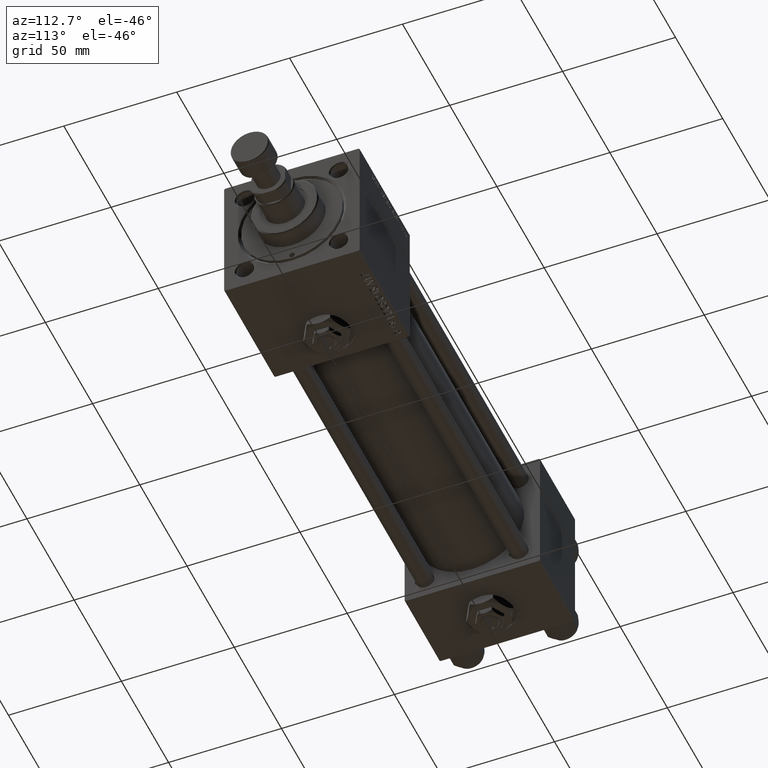
[diagram: clean part render]
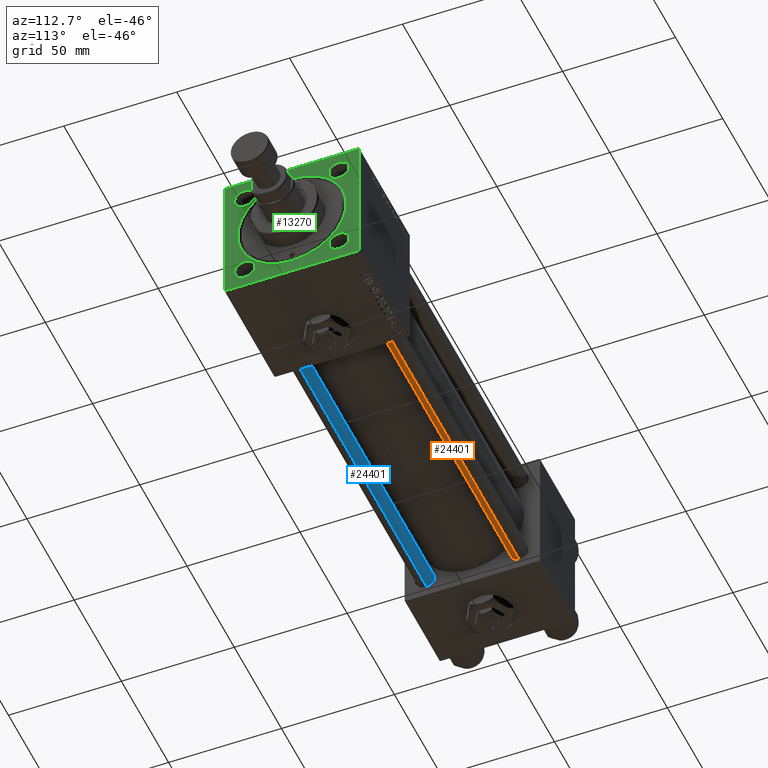
[diagram: same view with three faces highlighted in distinct colors, each labeled with its STEP entity id]
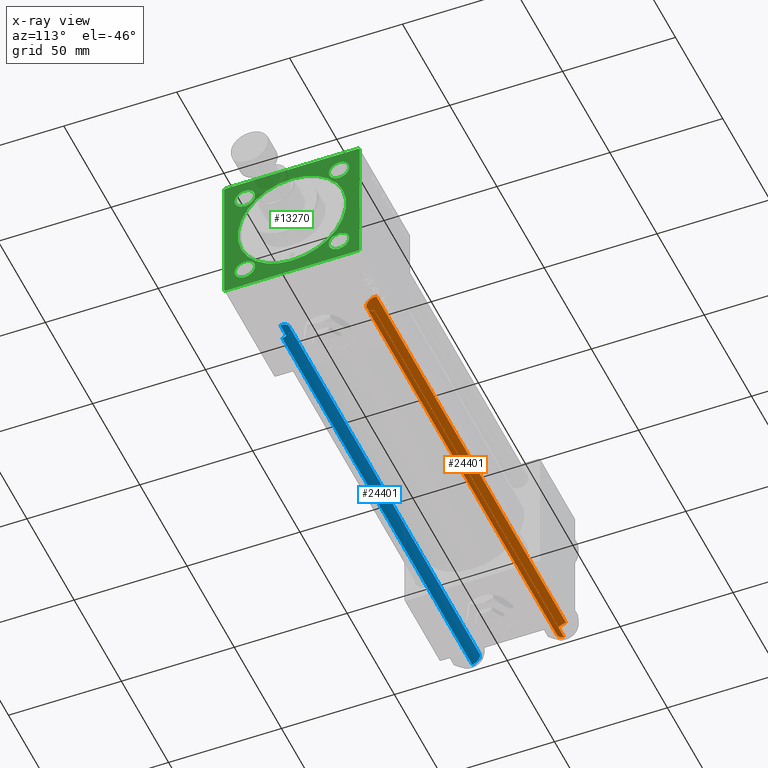
[diagram: x-ray of the same camera — body ghosted, the three highlighted faces saturated]
A machine part, auxiliary view with three faces highlighted in distinct colors.
The next image is the same camera in x-ray (body ghosted, the three faces saturated) — at least one of them is partly hidden behind the body in this view.
Their STEP definitions:

[orange] entity #24401 — the highlighted cylindrical surface (edge-blend (fillet) strip) has radius 4 mm, axis along (1, -0, 0).
#3389 = DIRECTION ( 'NONE',  ( -0.000000000000000000, -0.000000000000000000, -1.000000000000000000 ) ) ;
#4486 = CIRCLE ( 'NONE', #16394, 4.000000000000000000 ) ;
#8575 = FACE_OUTER_BOUND ( 'NONE', #51169, .T. ) ;
#8893 = VECTOR ( 'NONE', #3389, 1000.000000000000000 ) ;
#13548 = CARTESIAN_POINT ( 'NONE',  ( -4.000000000000000000, 0.000000000000000000, 0.5000000000000004441 ) ) ;
#15386 = CARTESIAN_POINT ( 'NONE',  ( 4.000000000000000000, 4.898587196589412829E-16, 202.0000000000000000 ) ) ;
#15426 = VERTEX_POINT ( 'NONE', #13548 ) ;
#15537 = DIRECTION ( 'NONE',  ( 0.000000000000000000, 0.000000000000000000, -1.000000000000000000 ) ) ;
#16394 = AXIS2_PLACEMENT_3D ( 'NONE', #35703, #51992, #43202 ) ;
#19244 = EDGE_CURVE ( 'NONE', #49993, #32556, #24185, .T. ) ;
#20847 = LINE ( 'NONE', #49407, #46899 ) ;
#21128 = DIRECTION ( 'NONE',  ( -0.000000000000000000, -0.000000000000000000, -1.000000000000000000 ) ) ;
#22009 = EDGE_CURVE ( 'NONE', #49993, #36202, #51986, .T. ) ;
#24185 = CIRCLE ( 'NONE', #29295, 4.000000000000000000 ) ;
#24401 = ADVANCED_FACE ( 'NONE', ( #8575 ), #24863, .T. ) ;
#24863 = CYLINDRICAL_SURFACE ( 'NONE', #36302, 4.000000000000000000 ) ;
#24910 = CARTESIAN_POINT ( 'NONE',  ( 4.000000000000000000, 4.898587196589412829E-16, 0.5000000000000004441 ) ) ;
#25145 = ORIENTED_EDGE ( 'NONE', *, *, #19244, .T. ) ;
#25630 = DIRECTION ( 'NONE',  ( -0.000000000000000000, -0.000000000000000000, -1.000000000000000000 ) ) ;
#29274 = ORIENTED_EDGE ( 'NONE', *, *, #22009, .F. ) ;
#29295 = AXIS2_PLACEMENT_3D ( 'NONE', #52133, #15537, #31840 ) ;
#31840 = DIRECTION ( 'NONE',  ( 1.000000000000000000, 0.000000000000000000, 0.000000000000000000 ) ) ;
#32556 = VERTEX_POINT ( 'NONE', #43694 ) ;
#33139 = CARTESIAN_POINT ( 'NONE',  ( 0.000000000000000000, 0.000000000000000000, 202.0000000000000000 ) ) ;
#35703 = CARTESIAN_POINT ( 'NONE',  ( 0.000000000000000000, 0.000000000000000000, 0.5000000000000004441 ) ) ;
#36202 = VERTEX_POINT ( 'NONE', #24910 ) ;
#36302 = AXIS2_PLACEMENT_3D ( 'NONE', #33139, #21128, #41164 ) ;
#40150 = CARTESIAN_POINT ( 'NONE',  ( 4.000000000000000000, 4.898587196589412829E-16, 201.5000000000000000 ) ) ;
#41164 = DIRECTION ( 'NONE',  ( -1.000000000000000000, 0.000000000000000000, 0.000000000000000000 ) ) ;
#43202 = DIRECTION ( 'NONE',  ( 1.000000000000000000, 0.000000000000000000, 0.000000000000000000 ) ) ;
#43694 = CARTESIAN_POINT ( 'NONE',  ( -4.000000000000000000, 0.000000000000000000, 201.5000000000000000 ) ) ;
#44780 = ORIENTED_EDGE ( 'NONE', *, *, #46623, .T. ) ;
#45896 = ORIENTED_EDGE ( 'NONE', *, *, #51424, .T. ) ;
#46623 = EDGE_CURVE ( 'NONE', #32556, #15426, #20847, .T. ) ;
#46899 = VECTOR ( 'NONE', #25630, 1000.000000000000000 ) ;
#49407 = CARTESIAN_POINT ( 'NONE',  ( -4.000000000000000000, 0.000000000000000000, 202.0000000000000000 ) ) ;
#49993 = VERTEX_POINT ( 'NONE', #40150 ) ;
#51169 = EDGE_LOOP ( 'NONE', ( #29274, #25145, #44780, #45896 ) ) ;
#51424 = EDGE_CURVE ( 'NONE', #15426, #36202, #4486, .T. ) ;
#51986 = LINE ( 'NONE', #15386, #8893 ) ;
#51992 = DIRECTION ( 'NONE',  ( -0.000000000000000000, -0.000000000000000000, 1.000000000000000000 ) ) ;
#52133 = CARTESIAN_POINT ( 'NONE',  ( 0.000000000000000000, 0.000000000000000000, 201.5000000000000000 ) ) ;

[blue] entity #24401 — the highlighted cylindrical surface (edge-blend (fillet) strip) has radius 4 mm, axis along (-1, -0, -0).
#3389 = DIRECTION ( 'NONE',  ( -0.000000000000000000, -0.000000000000000000, -1.000000000000000000 ) ) ;
#4486 = CIRCLE ( 'NONE', #16394, 4.000000000000000000 ) ;
#8575 = FACE_OUTER_BOUND ( 'NONE', #51169, .T. ) ;
#8893 = VECTOR ( 'NONE', #3389, 1000.000000000000000 ) ;
#13548 = CARTESIAN_POINT ( 'NONE',  ( -4.000000000000000000, 0.000000000000000000, 0.5000000000000004441 ) ) ;
#15386 = CARTESIAN_POINT ( 'NONE',  ( 4.000000000000000000, 4.898587196589412829E-16, 202.0000000000000000 ) ) ;
#15426 = VERTEX_POINT ( 'NONE', #13548 ) ;
#15537 = DIRECTION ( 'NONE',  ( 0.000000000000000000, 0.000000000000000000, -1.000000000000000000 ) ) ;
#16394 = AXIS2_PLACEMENT_3D ( 'NONE', #35703, #51992, #43202 ) ;
#19244 = EDGE_CURVE ( 'NONE', #49993, #32556, #24185, .T. ) ;
#20847 = LINE ( 'NONE', #49407, #46899 ) ;
#21128 = DIRECTION ( 'NONE',  ( -0.000000000000000000, -0.000000000000000000, -1.000000000000000000 ) ) ;
#22009 = EDGE_CURVE ( 'NONE', #49993, #36202, #51986, .T. ) ;
#24185 = CIRCLE ( 'NONE', #29295, 4.000000000000000000 ) ;
#24401 = ADVANCED_FACE ( 'NONE', ( #8575 ), #24863, .T. ) ;
#24863 = CYLINDRICAL_SURFACE ( 'NONE', #36302, 4.000000000000000000 ) ;
#24910 = CARTESIAN_POINT ( 'NONE',  ( 4.000000000000000000, 4.898587196589412829E-16, 0.5000000000000004441 ) ) ;
#25145 = ORIENTED_EDGE ( 'NONE', *, *, #19244, .T. ) ;
#25630 = DIRECTION ( 'NONE',  ( -0.000000000000000000, -0.000000000000000000, -1.000000000000000000 ) ) ;
#29274 = ORIENTED_EDGE ( 'NONE', *, *, #22009, .F. ) ;
#29295 = AXIS2_PLACEMENT_3D ( 'NONE', #52133, #15537, #31840 ) ;
#31840 = DIRECTION ( 'NONE',  ( 1.000000000000000000, 0.000000000000000000, 0.000000000000000000 ) ) ;
#32556 = VERTEX_POINT ( 'NONE', #43694 ) ;
#33139 = CARTESIAN_POINT ( 'NONE',  ( 0.000000000000000000, 0.000000000000000000, 202.0000000000000000 ) ) ;
#35703 = CARTESIAN_POINT ( 'NONE',  ( 0.000000000000000000, 0.000000000000000000, 0.5000000000000004441 ) ) ;
#36202 = VERTEX_POINT ( 'NONE', #24910 ) ;
#36302 = AXIS2_PLACEMENT_3D ( 'NONE', #33139, #21128, #41164 ) ;
#40150 = CARTESIAN_POINT ( 'NONE',  ( 4.000000000000000000, 4.898587196589412829E-16, 201.5000000000000000 ) ) ;
#41164 = DIRECTION ( 'NONE',  ( -1.000000000000000000, 0.000000000000000000, 0.000000000000000000 ) ) ;
#43202 = DIRECTION ( 'NONE',  ( 1.000000000000000000, 0.000000000000000000, 0.000000000000000000 ) ) ;
#43694 = CARTESIAN_POINT ( 'NONE',  ( -4.000000000000000000, 0.000000000000000000, 201.5000000000000000 ) ) ;
#44780 = ORIENTED_EDGE ( 'NONE', *, *, #46623, .T. ) ;
#45896 = ORIENTED_EDGE ( 'NONE', *, *, #51424, .T. ) ;
#46623 = EDGE_CURVE ( 'NONE', #32556, #15426, #20847, .T. ) ;
#46899 = VECTOR ( 'NONE', #25630, 1000.000000000000000 ) ;
#49407 = CARTESIAN_POINT ( 'NONE',  ( -4.000000000000000000, 0.000000000000000000, 202.0000000000000000 ) ) ;
#49993 = VERTEX_POINT ( 'NONE', #40150 ) ;
#51169 = EDGE_LOOP ( 'NONE', ( #29274, #25145, #44780, #45896 ) ) ;
#51424 = EDGE_CURVE ( 'NONE', #15426, #36202, #4486, .T. ) ;
#51986 = LINE ( 'NONE', #15386, #8893 ) ;
#51992 = DIRECTION ( 'NONE',  ( -0.000000000000000000, -0.000000000000000000, 1.000000000000000000 ) ) ;
#52133 = CARTESIAN_POINT ( 'NONE',  ( 0.000000000000000000, 0.000000000000000000, 201.5000000000000000 ) ) ;

[green] entity #13270 — the highlighted planar face has unit normal (-1, 0, 0).
#325 = EDGE_LOOP ( 'NONE', ( #42139, #9266 ) ) ;
#439 = ORIENTED_EDGE ( 'NONE', *, *, #19456, .T. ) ;
#457 = CARTESIAN_POINT ( 'NONE',  ( 228.0000000000000000, -20.84999999999999432, 20.85000000000000142 ) ) ;
#1582 = AXIS2_PLACEMENT_3D ( 'NONE', #20062, #36362, #8051 ) ;
#2014 = AXIS2_PLACEMENT_3D ( 'NONE', #4462, #12704, #8195 ) ;
#2096 = DIRECTION ( 'NONE',  ( -1.000000000000000000, 0.000000000000000000, -0.000000000000000000 ) ) ;
#2419 = DIRECTION ( 'NONE',  ( -1.000000000000000000, 0.000000000000000000, -0.000000000000000000 ) ) ;
#3306 = CIRCLE ( 'NONE', #1582, 23.99999999999999645 ) ;
#3379 = LINE ( 'NONE', #6861, #49039 ) ;
#3551 = EDGE_CURVE ( 'NONE', #10627, #46733, #18983, .T. ) ;
#3892 = CARTESIAN_POINT ( 'NONE',  ( 228.0000000000000000, -20.85000000000000142, -16.34999999999999787 ) ) ;
#4462 = CARTESIAN_POINT ( 'NONE',  ( 228.0000000000000000, 20.84999999999999787, -20.85000000000000142 ) ) ;
#4972 = CARTESIAN_POINT ( 'NONE',  ( 228.0000000000000000, -20.85000000000000142, -20.85000000000000142 ) ) ;
#5226 = VERTEX_POINT ( 'NONE', #22727 ) ;
#5346 = DIRECTION ( 'NONE',  ( 0.000000000000000000, 0.7071067811865279218, -0.7071067811865671127 ) ) ;
#5869 = CIRCLE ( 'NONE', #10135, 4.500000000000003553 ) ;
#6239 = CIRCLE ( 'NONE', #18999, 23.99999999999999645 ) ;
#6861 = CARTESIAN_POINT ( 'NONE',  ( 228.0000000000000000, -30.00000000000000000, 29.49999999999999289 ) ) ;
#6963 = EDGE_CURVE ( 'NONE', #15024, #17356, #19394, .T. ) ;
#7121 = DIRECTION ( 'NONE',  ( -0.000000000000000000, -0.7071067811865474617, -0.7071067811865474617 ) ) ;
#7878 = VERTEX_POINT ( 'NONE', #23484 ) ;
#7950 = DIRECTION ( 'NONE',  ( 0.000000000000000000, 0.000000000000000000, 1.000000000000000000 ) ) ;
#8014 = LINE ( 'NONE', #44084, #47274 ) ;
#8023 = ORIENTED_EDGE ( 'NONE', *, *, #31601, .T. ) ;
#8051 = DIRECTION ( 'NONE',  ( 0.000000000000000000, 0.000000000000000000, 1.000000000000000000 ) ) ;
#8195 = DIRECTION ( 'NONE',  ( 0.000000000000000000, 0.000000000000000000, 1.000000000000000000 ) ) ;
#8445 = CARTESIAN_POINT ( 'NONE',  ( 228.0000000000000000, -29.50000000000002487, -30.00000000000000000 ) ) ;
#9003 = VECTOR ( 'NONE', #24059, 1000.000000000000000 ) ;
#9123 = CARTESIAN_POINT ( 'NONE',  ( 228.0000000000000000, 0.000000000000000000, -23.99999999999999645 ) ) ;
#9266 = ORIENTED_EDGE ( 'NONE', *, *, #19569, .T. ) ;
#9313 = VERTEX_POINT ( 'NONE', #9123 ) ;
#9462 = VERTEX_POINT ( 'NONE', #48335 ) ;
#10135 = AXIS2_PLACEMENT_3D ( 'NONE', #29448, #25438, #37723 ) ;
#10145 = EDGE_LOOP ( 'NONE', ( #29866, #439 ) ) ;
#10587 = EDGE_CURVE ( 'NONE', #51682, #10627, #49705, .T. ) ;
#10627 = VERTEX_POINT ( 'NONE', #24615 ) ;
#11550 = AXIS2_PLACEMENT_3D ( 'NONE', #42475, #22188, #20267 ) ;
#12704 = DIRECTION ( 'NONE',  ( -1.000000000000000000, 0.000000000000000000, -0.000000000000000000 ) ) ;
#13270 = ADVANCED_FACE ( 'NONE', ( #24188, #28449, #40738, #40215, #16422, #19915 ), #44475, .F. ) ;
#13723 = VECTOR ( 'NONE', #20608, 1000.000000000000000 ) ;
#14064 = AXIS2_PLACEMENT_3D ( 'NONE', #17424, #50005, #45471 ) ;
#14858 = CARTESIAN_POINT ( 'NONE',  ( 228.0000000000000000, 20.84999999999999787, -25.35000000000000497 ) ) ;
#15024 = VERTEX_POINT ( 'NONE', #45931 ) ;
#15110 = CARTESIAN_POINT ( 'NONE',  ( 228.0000000000000000, 30.00000000000000000, -29.99999999999999289 ) ) ;
#15247 = CARTESIAN_POINT ( 'NONE',  ( 228.0000000000000000, 2.939152317953647500E-15, 23.99999999999999645 ) ) ;
#15407 = DIRECTION ( 'NONE',  ( 0.000000000000000000, 0.000000000000000000, 1.000000000000000000 ) ) ;
#15450 = DIRECTION ( 'NONE',  ( 0.000000000000000000, 0.000000000000000000, -1.000000000000000000 ) ) ;
#16141 = EDGE_LOOP ( 'NONE', ( #21043, #37238 ) ) ;
#16422 = FACE_BOUND ( 'NONE', #16141, .T. ) ;
#17237 = CARTESIAN_POINT ( 'NONE',  ( 228.0000000000000000, 30.00000000000000000, 29.50000000000000000 ) ) ;
#17356 = VERTEX_POINT ( 'NONE', #8445 ) ;
#17424 = CARTESIAN_POINT ( 'NONE',  ( 228.0000000000000000, 20.84999999999999787, -20.85000000000000142 ) ) ;
#17611 = LINE ( 'NONE', #33386, #38377 ) ;
#17713 = EDGE_LOOP ( 'NONE', ( #18249, #34162, #28039, #47091, #38747, #51550, #33857, #8023 ) ) ;
#18249 = ORIENTED_EDGE ( 'NONE', *, *, #21568, .T. ) ;
#18983 = LINE ( 'NONE', #51558, #32268 ) ;
#18999 = AXIS2_PLACEMENT_3D ( 'NONE', #38679, #2096, #26118 ) ;
#19072 = AXIS2_PLACEMENT_3D ( 'NONE', #19420, #43013, #15407 ) ;
#19394 = LINE ( 'NONE', #15110, #40927 ) ;
#19420 = CARTESIAN_POINT ( 'NONE',  ( 228.0000000000000000, -20.84999999999999432, 20.85000000000000142 ) ) ;
#19456 = EDGE_CURVE ( 'NONE', #7878, #45388, #42106, .T. ) ;
#19569 = EDGE_CURVE ( 'NONE', #50692, #36537, #41227, .T. ) ;
#19687 = CIRCLE ( 'NONE', #38455, 4.500000000000003553 ) ;
#19789 = LINE ( 'NONE', #35556, #9003 ) ;
#19915 = FACE_OUTER_BOUND ( 'NONE', #17713, .T. ) ;
#20062 = CARTESIAN_POINT ( 'NONE',  ( 228.0000000000000000, 0.000000000000000000, 0.000000000000000000 ) ) ;
#20173 = DIRECTION ( 'NONE',  ( -1.000000000000000000, 0.000000000000000000, -0.000000000000000000 ) ) ;
#20267 = DIRECTION ( 'NONE',  ( 0.000000000000000000, 0.000000000000000000, 1.000000000000000000 ) ) ;
#20608 = DIRECTION ( 'NONE',  ( 0.000000000000000000, -0.7071067811865279218, 0.7071067811865671127 ) ) ;
#21029 = VERTEX_POINT ( 'NONE', #29678 ) ;
#21043 = ORIENTED_EDGE ( 'NONE', *, *, #52799, .T. ) ;
#21267 = EDGE_CURVE ( 'NONE', #15024, #5226, #8014, .T. ) ;
#21568 = EDGE_CURVE ( 'NONE', #34379, #21029, #47246, .T. ) ;
#22020 = AXIS2_PLACEMENT_3D ( 'NONE', #4972, #33278, #22315 ) ;
#22188 = DIRECTION ( 'NONE',  ( -1.000000000000000000, 0.000000000000000000, -0.000000000000000000 ) ) ;
#22315 = DIRECTION ( 'NONE',  ( 0.000000000000000000, 0.000000000000000000, 1.000000000000000000 ) ) ;
#22710 = CARTESIAN_POINT ( 'NONE',  ( 228.0000000000000000, -20.85000000000000142, -20.85000000000000142 ) ) ;
#22727 = CARTESIAN_POINT ( 'NONE',  ( 228.0000000000000000, 30.00000000000000000, -29.49999999999995026 ) ) ;
#23205 = EDGE_CURVE ( 'NONE', #36537, #50692, #50744, .T. ) ;
#23408 = DIRECTION ( 'NONE',  ( 0.000000000000000000, -1.000000000000000000, -1.156482317317871478E-16 ) ) ;
#23484 = CARTESIAN_POINT ( 'NONE',  ( 228.0000000000000000, -20.84999999999999432, 25.35000000000000497 ) ) ;
#24059 = DIRECTION ( 'NONE',  ( 0.000000000000000000, 0.000000000000000000, -1.000000000000000000 ) ) ;
#24188 = FACE_BOUND ( 'NONE', #49779, .T. ) ;
#24556 = EDGE_CURVE ( 'NONE', #9462, #40167, #44829, .T. ) ;
#24615 = CARTESIAN_POINT ( 'NONE',  ( 228.0000000000000000, 29.50000000000002487, 30.00000000000000000 ) ) ;
#24710 = CARTESIAN_POINT ( 'NONE',  ( 228.0000000000000000, 0.000000000000000000, 0.000000000000000000 ) ) ;
#24989 = CIRCLE ( 'NONE', #51406, 4.500000000000003553 ) ;
#25438 = DIRECTION ( 'NONE',  ( -1.000000000000000000, 0.000000000000000000, -0.000000000000000000 ) ) ;
#26118 = DIRECTION ( 'NONE',  ( 0.000000000000000000, 0.000000000000000000, 1.000000000000000000 ) ) ;
#26391 = ORIENTED_EDGE ( 'NONE', *, *, #52491, .T. ) ;
#27600 = EDGE_CURVE ( 'NONE', #51682, #5226, #19789, .T. ) ;
#28010 = CARTESIAN_POINT ( 'NONE',  ( 228.0000000000000000, -30.00000000000000000, 29.99999999999999289 ) ) ;
#28039 = ORIENTED_EDGE ( 'NONE', *, *, #6963, .F. ) ;
#28111 = ORIENTED_EDGE ( 'NONE', *, *, #24556, .T. ) ;
#28318 = EDGE_CURVE ( 'NONE', #40167, #9462, #5869, .T. ) ;
#28449 = FACE_BOUND ( 'NONE', #10145, .T. ) ;
#28492 = VERTEX_POINT ( 'NONE', #15247 ) ;
#29448 = CARTESIAN_POINT ( 'NONE',  ( 228.0000000000000000, 20.84999999999999787, 20.85000000000000142 ) ) ;
#29678 = CARTESIAN_POINT ( 'NONE',  ( 228.0000000000000000, -30.00000000000000000, -29.49999999999998579 ) ) ;
#29866 = ORIENTED_EDGE ( 'NONE', *, *, #48332, .T. ) ;
#30463 = VERTEX_POINT ( 'NONE', #3892 ) ;
#31601 = EDGE_CURVE ( 'NONE', #46733, #34379, #3379, .T. ) ;
#32050 = DIRECTION ( 'NONE',  ( -0.000000000000000000, 0.7071067811865279218, 0.7071067811865672237 ) ) ;
#32268 = VECTOR ( 'NONE', #33630, 1000.000000000000000 ) ;
#33278 = DIRECTION ( 'NONE',  ( -1.000000000000000000, 0.000000000000000000, -0.000000000000000000 ) ) ;
#33282 = CARTESIAN_POINT ( 'NONE',  ( 228.0000000000000000, -20.85000000000000142, -25.35000000000000497 ) ) ;
#33386 = CARTESIAN_POINT ( 'NONE',  ( 228.0000000000000000, -29.50000000000002487, -30.00000000000000000 ) ) ;
#33630 = DIRECTION ( 'NONE',  ( 0.000000000000000000, -1.000000000000000000, -1.156482317317871478E-16 ) ) ;
#33633 = VECTOR ( 'NONE', #15450, 1000.000000000000000 ) ;
#33857 = ORIENTED_EDGE ( 'NONE', *, *, #3551, .T. ) ;
#34162 = ORIENTED_EDGE ( 'NONE', *, *, #46676, .T. ) ;
#34190 = DIRECTION ( 'NONE',  ( 0.000000000000000000, 0.000000000000000000, 1.000000000000000000 ) ) ;
#34379 = VERTEX_POINT ( 'NONE', #44557 ) ;
#35556 = CARTESIAN_POINT ( 'NONE',  ( 228.0000000000000000, 30.00000000000000000, 30.00000000000000000 ) ) ;
#36362 = DIRECTION ( 'NONE',  ( -1.000000000000000000, 0.000000000000000000, -0.000000000000000000 ) ) ;
#36375 = CARTESIAN_POINT ( 'NONE',  ( 228.0000000000000000, 29.50000000000002487, 30.00000000000000000 ) ) ;
#36537 = VERTEX_POINT ( 'NONE', #14858 ) ;
#37238 = ORIENTED_EDGE ( 'NONE', *, *, #42909, .T. ) ;
#37723 = DIRECTION ( 'NONE',  ( 0.000000000000000000, 0.000000000000000000, 1.000000000000000000 ) ) ;
#38377 = VECTOR ( 'NONE', #5346, 1000.000000000000000 ) ;
#38455 = AXIS2_PLACEMENT_3D ( 'NONE', #457, #44527, #7950 ) ;
#38679 = CARTESIAN_POINT ( 'NONE',  ( 228.0000000000000000, 0.000000000000000000, 0.000000000000000000 ) ) ;
#38747 = ORIENTED_EDGE ( 'NONE', *, *, #27600, .F. ) ;
#40167 = VERTEX_POINT ( 'NONE', #49189 ) ;
#40215 = FACE_BOUND ( 'NONE', #325, .T. ) ;
#40738 = FACE_BOUND ( 'NONE', #47848, .T. ) ;
#40927 = VECTOR ( 'NONE', #23408, 1000.000000000000000 ) ;
#41227 = CIRCLE ( 'NONE', #2014, 4.500000000000003553 ) ;
#42106 = CIRCLE ( 'NONE', #19072, 4.500000000000003553 ) ;
#42139 = ORIENTED_EDGE ( 'NONE', *, *, #23205, .T. ) ;
#42412 = EDGE_CURVE ( 'NONE', #30463, #44270, #49302, .T. ) ;
#42475 = CARTESIAN_POINT ( 'NONE',  ( 228.0000000000000000, 20.84999999999999787, 20.85000000000000142 ) ) ;
#42909 = EDGE_CURVE ( 'NONE', #28492, #9313, #3306, .T. ) ;
#43013 = DIRECTION ( 'NONE',  ( -1.000000000000000000, 0.000000000000000000, -0.000000000000000000 ) ) ;
#43082 = CARTESIAN_POINT ( 'NONE',  ( 228.0000000000000000, -20.84999999999999432, 16.34999999999999787 ) ) ;
#44068 = ORIENTED_EDGE ( 'NONE', *, *, #28318, .T. ) ;
#44084 = CARTESIAN_POINT ( 'NONE',  ( 228.0000000000000000, 30.00000000000000000, -29.49999999999996447 ) ) ;
#44270 = VERTEX_POINT ( 'NONE', #33282 ) ;
#44475 = PLANE ( 'NONE',  #46238 ) ;
#44527 = DIRECTION ( 'NONE',  ( -1.000000000000000000, 0.000000000000000000, -0.000000000000000000 ) ) ;
#44557 = CARTESIAN_POINT ( 'NONE',  ( 228.0000000000000000, -30.00000000000000000, 29.49999999999999289 ) ) ;
#44829 = CIRCLE ( 'NONE', #11550, 4.500000000000003553 ) ;
#45388 = VERTEX_POINT ( 'NONE', #43082 ) ;
#45471 = DIRECTION ( 'NONE',  ( 0.000000000000000000, 0.000000000000000000, 1.000000000000000000 ) ) ;
#45931 = CARTESIAN_POINT ( 'NONE',  ( 228.0000000000000000, 29.50000000000000000, -29.99999999999999289 ) ) ;
#46048 = CARTESIAN_POINT ( 'NONE',  ( 228.0000000000000000, 20.84999999999999787, -16.34999999999999787 ) ) ;
#46238 = AXIS2_PLACEMENT_3D ( 'NONE', #24710, #20173, #52495 ) ;
#46676 = EDGE_CURVE ( 'NONE', #21029, #17356, #17611, .T. ) ;
#46733 = VERTEX_POINT ( 'NONE', #50462 ) ;
#47091 = ORIENTED_EDGE ( 'NONE', *, *, #21267, .T. ) ;
#47246 = LINE ( 'NONE', #28010, #33633 ) ;
#47274 = VECTOR ( 'NONE', #32050, 1000.000000000000000 ) ;
#47848 = EDGE_LOOP ( 'NONE', ( #26391, #49716 ) ) ;
#48332 = EDGE_CURVE ( 'NONE', #45388, #7878, #19687, .T. ) ;
#48335 = CARTESIAN_POINT ( 'NONE',  ( 228.0000000000000000, 20.84999999999999787, 25.35000000000000497 ) ) ;
#49039 = VECTOR ( 'NONE', #7121, 1000.000000000000114 ) ;
#49189 = CARTESIAN_POINT ( 'NONE',  ( 228.0000000000000000, 20.84999999999999787, 16.34999999999999787 ) ) ;
#49302 = CIRCLE ( 'NONE', #22020, 4.500000000000003553 ) ;
#49705 = LINE ( 'NONE', #36375, #13723 ) ;
#49716 = ORIENTED_EDGE ( 'NONE', *, *, #42412, .T. ) ;
#49779 = EDGE_LOOP ( 'NONE', ( #44068, #28111 ) ) ;
#50005 = DIRECTION ( 'NONE',  ( -1.000000000000000000, 0.000000000000000000, -0.000000000000000000 ) ) ;
#50462 = CARTESIAN_POINT ( 'NONE',  ( 228.0000000000000000, -29.50000000000000000, 29.99999999999999289 ) ) ;
#50692 = VERTEX_POINT ( 'NONE', #46048 ) ;
#50744 = CIRCLE ( 'NONE', #14064, 4.500000000000003553 ) ;
#51406 = AXIS2_PLACEMENT_3D ( 'NONE', #22710, #2419, #34190 ) ;
#51550 = ORIENTED_EDGE ( 'NONE', *, *, #10587, .T. ) ;
#51558 = CARTESIAN_POINT ( 'NONE',  ( 228.0000000000000000, 30.00000000000000000, 30.00000000000000000 ) ) ;
#51682 = VERTEX_POINT ( 'NONE', #17237 ) ;
#52491 = EDGE_CURVE ( 'NONE', #44270, #30463, #24989, .T. ) ;
#52495 = DIRECTION ( 'NONE',  ( -0.000000000000000000, 0.000000000000000000, 1.000000000000000000 ) ) ;
#52799 = EDGE_CURVE ( 'NONE', #9313, #28492, #6239, .T. ) ;